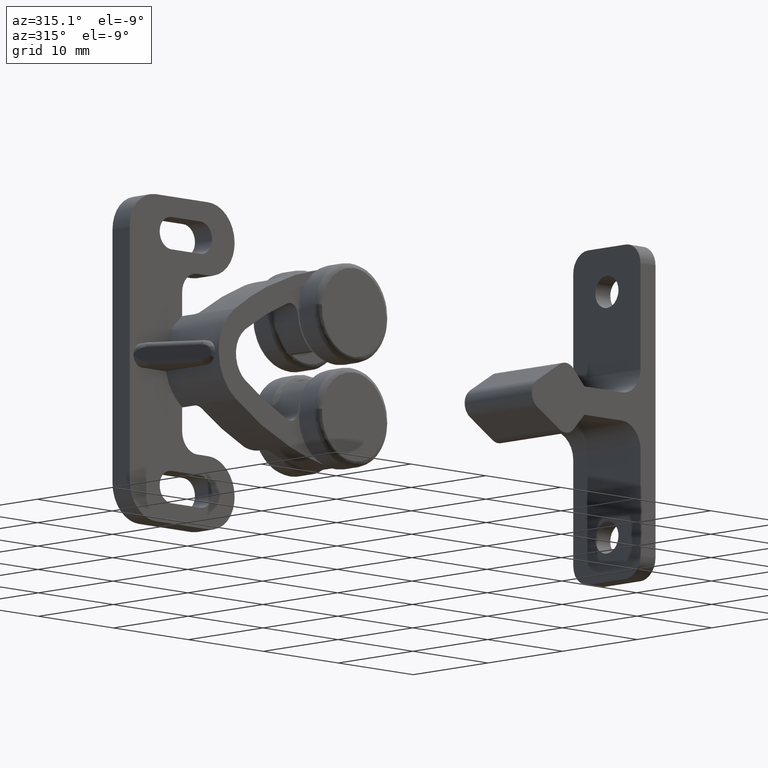
[diagram: clean part render]
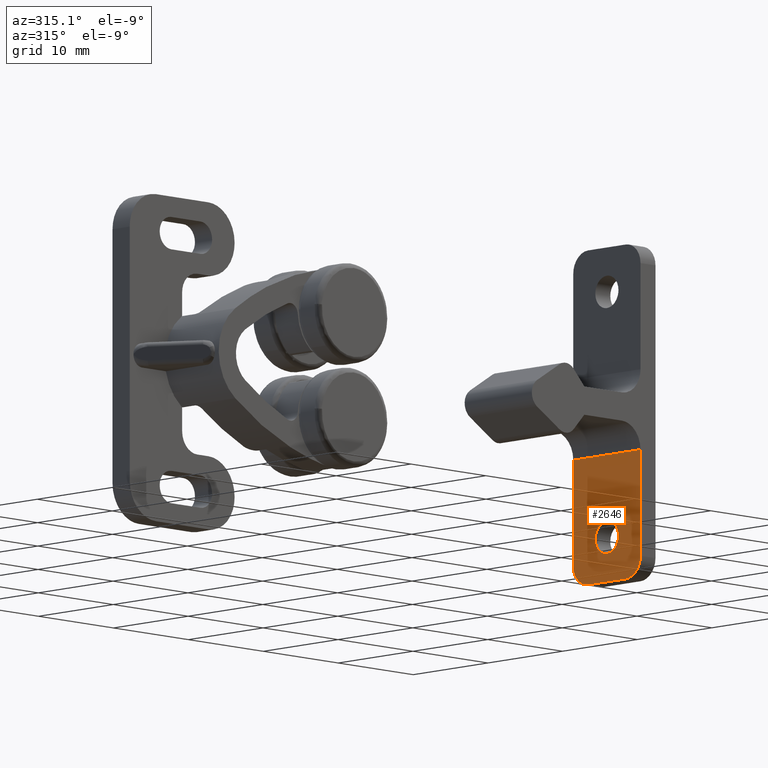
[diagram: same view with one face highlighted and labeled with its STEP entity id]
A machine part, auxiliary view. The second image highlights one B-rep face of the part: STEP entity #2646.
In plain terms, the highlighted face is a freeform B-spline surface patch.
Its self-contained STEP definition (entity closure, byte-faithful):
#1428=CARTESIAN_POINT('',(58.0,-8.0,-13.300000000000001));
#1429=VERTEX_POINT('',#1428);
#1430=CARTESIAN_POINT('',(58.000000000002252,-6.889191216720228,-12.831019449796329));
#1431=VERTEX_POINT('',#1430);
#1432=CARTESIAN_POINT('',(58.0,-8.0,-13.300000000000001));
#1433=CARTESIAN_POINT('',(58.000000000000377,-7.806461049804539,-13.300189715830760));
#1434=CARTESIAN_POINT('',(58.000000000001251,-7.509900996278197,-13.243679953734279));
#1435=CARTESIAN_POINT('',(58.000000000001343,-7.140853893384508,-13.054110386443121));
#1436=CARTESIAN_POINT('',(58.000000000002480,-6.970150419503607,-12.914241442479680));
#1437=CARTESIAN_POINT('',(58.000000000002252,-6.889191216720228,-12.831019449796329));
#1438=B_SPLINE_CURVE_WITH_KNOTS('',3,(#1432,#1433,#1434,#1435,#1436,#1437),.UNSPECIFIED.,.F.,.U.,(4,1,1,4),(0.000000010144279,0.580530282763065,0.890146057580822,1.238464103720375),.UNSPECIFIED.);
#1439=EDGE_CURVE('',#1429,#1431,#1438,.T.);
#1441=CARTESIAN_POINT('',(57.999999999999993,-9.549999999999658,-11.750001027670500));
#1442=VERTEX_POINT('',#1441);
#1443=CARTESIAN_POINT('',(57.999999999999993,-9.549999999999658,-11.750001027670500));
#1444=CARTESIAN_POINT('',(58.000000000000021,-9.550006136552460,-11.851442299291460));
#1445=CARTESIAN_POINT('',(58.000000000000007,-9.526296938404313,-12.092392794846541));
#1446=CARTESIAN_POINT('',(57.999999999999829,-9.413908398485395,-12.419104231002001));
#1447=CARTESIAN_POINT('',(58.000000000000327,-9.222997934115563,-12.720526984900379));
#1448=CARTESIAN_POINT('',(57.999999999999183,-9.000252241897492,-12.948820287772071));
#1449=CARTESIAN_POINT('',(58.000000000001037,-8.756562488844111,-13.111617904048581));
#1450=CARTESIAN_POINT('',(57.999999999998771,-8.431083294713936,-13.255943924579160));
#1451=CARTESIAN_POINT('',(58.000000000001030,-8.177551977475682,-13.300123002770770));
#1452=CARTESIAN_POINT('',(58.0,-8.0,-13.300000000000001));
#1453=B_SPLINE_CURVE_WITH_KNOTS('',3,(#1443,#1444,#1445,#1446,#1447,#1448,#1449,#1450,#1451,#1452),.UNSPECIFIED.,.F.,.U.,(4,1,1,1,1,1,1,4),(0.000000023607427,0.304338703580194,0.722833962117716,1.027182614872012,1.369567845664718,1.673915684543682,1.902186640051090,2.434794824492083),.UNSPECIFIED.);
#1454=EDGE_CURVE('',#1442,#1429,#1453,.T.);
#1456=CARTESIAN_POINT('',(58.0,-8.0,-10.199999999999999));
#1457=VERTEX_POINT('',#1456);
#1458=CARTESIAN_POINT('',(58.0,-8.0,-10.199999999999999));
#1459=CARTESIAN_POINT('',(58.000000000000057,-8.177542501841327,-10.199887133901001));
#1460=CARTESIAN_POINT('',(57.999999999999922,-8.494496765941882,-10.255065765207490));
#1461=CARTESIAN_POINT('',(58.000000000000149,-8.880685027267912,-10.455477519056361));
#1462=CARTESIAN_POINT('',(57.999999999999837,-9.167413585544464,-10.709032281322900));
#1463=CARTESIAN_POINT('',(58.000000000000028,-9.380788850837622,-11.011953983055109));
#1464=CARTESIAN_POINT('',(58.000000000000249,-9.518702192452611,-11.369588125276110));
#1465=CARTESIAN_POINT('',(57.999999999999737,-9.550035252723427,-11.623190343702500));
#1466=CARTESIAN_POINT('',(57.999999999999993,-9.549999999999658,-11.750001027670500));
#1467=B_SPLINE_CURVE_WITH_KNOTS('',3,(#1458,#1459,#1460,#1461,#1462,#1463,#1464,#1465,#1466),.UNSPECIFIED.,.F.,.U.,(4,1,1,1,1,1,4),(0.000000022198395,0.532608769132604,0.951097383422278,1.293483531110059,1.673916480986494,2.054366398546033,2.434795982945152),.UNSPECIFIED.);
#1468=EDGE_CURVE('',#1457,#1442,#1467,.T.);
#1470=CARTESIAN_POINT('',(57.999999999993953,-6.857219960032968,-10.702834982599800));
#1471=VERTEX_POINT('',#1470);
#1472=CARTESIAN_POINT('',(57.999999999993953,-6.857219960032968,-10.702834982599800));
#1473=CARTESIAN_POINT('',(57.999999999994607,-6.992730007489492,-10.554634530675520));
#1474=CARTESIAN_POINT('',(57.999999999996163,-7.267494932029772,-10.352751702144770));
#1475=CARTESIAN_POINT('',(57.999999999998337,-7.678747323332294,-10.220671286522199));
#1476=CARTESIAN_POINT('',(57.999999999999503,-7.906304081924841,-10.199996830272640));
#1477=CARTESIAN_POINT('',(58.0,-8.0,-10.199999999999999));
#1478=B_SPLINE_CURVE_WITH_KNOTS('',3,(#1472,#1473,#1474,#1475,#1476,#1477),.UNSPECIFIED.,.F.,.U.,(4,1,1,4),(0.000000012270657,0.602360280200667,1.003933357717502,1.285034663912594),.UNSPECIFIED.);
#1479=EDGE_CURVE('',#1471,#1457,#1478,.T.);
#1561=CARTESIAN_POINT('',(58.0,-6.450000000000341,-11.749998972329481));
#1562=VERTEX_POINT('',#1561);
#1563=CARTESIAN_POINT('',(58.000000000002252,-6.889191216720228,-12.831019449796329));
#1564=CARTESIAN_POINT('',(58.000000000001798,-6.776137975313354,-12.714973958050580));
#1565=CARTESIAN_POINT('',(58.000000000001890,-6.601559004085329,-12.467616485019130));
#1566=CARTESIAN_POINT('',(58.000000000000469,-6.472890286522800,-12.086462335944740));
#1567=CARTESIAN_POINT('',(58.000000000000242,-6.449992684286532,-11.849689564790021));
#1568=CARTESIAN_POINT('',(58.0,-6.450000000000341,-11.749998972329481));
#1569=B_SPLINE_CURVE_WITH_KNOTS('',3,(#1563,#1564,#1565,#1566,#1567,#1568),.UNSPECIFIED.,.F.,.U.,(4,1,1,4),(0.000000015533145,0.486014722055374,0.897249139092646,1.196332180304869),.UNSPECIFIED.);
#1570=EDGE_CURVE('',#1431,#1562,#1569,.T.);
#1594=CARTESIAN_POINT('',(58.0,-6.450000000000341,-11.749998972329481));
#1595=CARTESIAN_POINT('',(57.999999999999282,-6.449962967546178,-11.618254412305250));
#1596=CARTESIAN_POINT('',(57.999999999997861,-6.479194864922063,-11.390723506969371));
#1597=CARTESIAN_POINT('',(57.999999999995907,-6.610333732910131,-11.028851883489541));
#1598=CARTESIAN_POINT('',(57.999999999994451,-6.751974295092440,-10.817583200213200));
#1599=CARTESIAN_POINT('',(57.999999999993953,-6.857219960032968,-10.702834982599800));
#1600=B_SPLINE_CURVE_WITH_KNOTS('',3,(#1594,#1595,#1596,#1597,#1598,#1599),.UNSPECIFIED.,.F.,.U.,(4,1,1,4),(0.000000012774801,0.395233856483370,0.682666048572457,1.149760477906395),.UNSPECIFIED.);
#1601=EDGE_CURVE('',#1562,#1471,#1600,.T.);
#1945=CARTESIAN_POINT('',(58.0,-10.500000000000000,-15.999599999999999));
#1946=VERTEX_POINT('',#1945);
#1947=CARTESIAN_POINT('',(58.0,-12.500000000000000,-13.999599999999999));
#1948=VERTEX_POINT('',#1947);
#1949=CARTESIAN_POINT('',(58.0,-10.500000000000000,-15.999599999999999));
#1950=CARTESIAN_POINT('',(58.000000000000050,-10.655440631993180,-15.999626354269930));
#1951=CARTESIAN_POINT('',(57.999999999999872,-10.982690614339941,-15.961282680189930));
#1952=CARTESIAN_POINT('',(58.000000000000369,-11.391561672018790,-15.806445373553711));
#1953=CARTESIAN_POINT('',(57.999999999999389,-11.729976112783151,-15.589167065778289));
#1954=CARTESIAN_POINT('',(58.000000000000362,-12.032715409287469,-15.311478447038461));
#1955=CARTESIAN_POINT('',(57.999999999999829,-12.280236705884700,-14.950662901650880));
#1956=CARTESIAN_POINT('',(57.999999999999858,-12.457738095397699,-14.490445104681401));
#1957=CARTESIAN_POINT('',(58.000000000000469,-12.500057753288189,-14.179591783301600));
#1958=CARTESIAN_POINT('',(58.0,-12.500000000000000,-13.999599999999999));
#1959=B_SPLINE_CURVE_WITH_KNOTS('',3,(#1949,#1950,#1951,#1952,#1953,#1954,#1955,#1956,#1957,#1958),.UNSPECIFIED.,.F.,.U.,(4,1,1,1,1,1,1,4),(0.000000074899983,0.466324219752764,0.981758553004054,1.300831247058447,1.668966529508047,2.208942671693905,2.601650445291411,3.141612365757078),.UNSPECIFIED.);
#1960=EDGE_CURVE('',#1946,#1948,#1959,.T.);
#2006=CARTESIAN_POINT('',(58.0,-3.500000000000080,-13.999599999999999));
#2007=VERTEX_POINT('',#2006);
#2008=CARTESIAN_POINT('',(58.0,-5.500000000000000,-15.999599999999999));
#2009=VERTEX_POINT('',#2008);
#2010=CARTESIAN_POINT('',(58.0,-3.500000000000080,-13.999599999999999));
#2011=CARTESIAN_POINT('',(58.000000000000128,-3.499916597240170,-14.195961700041209));
#2012=CARTESIAN_POINT('',(57.999999999999808,-3.543735509340844,-14.490428188751601));
#2013=CARTESIAN_POINT('',(58.000000000000142,-3.700229338770349,-14.896084885967610));
#2014=CARTESIAN_POINT('',(58.000000000000043,-3.888194979324888,-15.205376174621430));
#2015=CARTESIAN_POINT('',(58.000000000000639,-4.165929479190860,-15.508063197522031));
#2016=CARTESIAN_POINT('',(57.999999999999083,-4.492806158757356,-15.744336106666500));
#2017=CARTESIAN_POINT('',(58.000000000001329,-4.943747135064148,-15.944228034391079));
#2018=CARTESIAN_POINT('',(57.999999999999112,-5.287269945726048,-15.999730714029450));
#2019=CARTESIAN_POINT('',(58.0,-5.500000000000000,-15.999599999999999));
#2020=B_SPLINE_CURVE_WITH_KNOTS('',3,(#2010,#2011,#2012,#2013,#2014,#2015,#2016,#2017,#2018,#2019),.UNSPECIFIED.,.F.,.U.,(4,1,1,1,1,1,1,4),(0.000000074890806,0.589050951663792,0.883581692739689,1.300831247053276,1.668966529504116,2.110768140202842,2.503475913801229,3.141612365757026),.UNSPECIFIED.);
#2021=EDGE_CURVE('',#2007,#2009,#2020,.T.);
#2058=CARTESIAN_POINT('',(58.0,-12.500000000000000,-3.850000000000000));
#2059=VERTEX_POINT('',#2058);
#2060=CARTESIAN_POINT('',(58.0,-12.500000000000000,-3.850000000000000));
#2061=CARTESIAN_POINT('',(58.0,-12.500000000000000,-13.999599999999999));
#2062=QUASI_UNIFORM_CURVE('',1,(#2060,#2061),.UNSPECIFIED.,.F.,.U.);
#2063=EDGE_CURVE('',#2059,#1948,#2062,.T.);
#2207=CARTESIAN_POINT('',(58.0,-3.500000000000060,-3.850000000000000));
#2208=VERTEX_POINT('',#2207);
#2209=CARTESIAN_POINT('',(58.0,-3.500000000000060,-3.850000000000000));
#2210=CARTESIAN_POINT('',(58.0,-3.500000000000080,-13.999599999999999));
#2211=QUASI_UNIFORM_CURVE('',1,(#2209,#2210),.UNSPECIFIED.,.F.,.U.);
#2212=EDGE_CURVE('',#2208,#2007,#2211,.T.);
#2392=CARTESIAN_POINT('',(58.0,-5.500000000000000,-15.999599999999999));
#2393=CARTESIAN_POINT('',(58.0,-10.500000000000000,-15.999599999999999));
#2394=QUASI_UNIFORM_CURVE('',1,(#2392,#2393),.UNSPECIFIED.,.F.,.U.);
#2395=EDGE_CURVE('',#2009,#1946,#2394,.T.);
#2428=CARTESIAN_POINT('',(58.0,-3.500000000000060,-3.850000000000000));
#2429=CARTESIAN_POINT('',(58.0,-12.500000000000000,-3.850000000000000));
#2430=QUASI_UNIFORM_CURVE('',1,(#2428,#2429),.UNSPECIFIED.,.F.,.U.);
#2431=EDGE_CURVE('',#2208,#2059,#2430,.T.);
#2625=CARTESIAN_POINT('',(58.0,-12.949549982556251,-16.606472952658720));
#2626=CARTESIAN_POINT('',(58.0,-12.949549982556251,-3.243127155967162));
#2627=CARTESIAN_POINT('',(58.0,-3.050449776044999,-16.606472952658720));
#2628=CARTESIAN_POINT('',(58.0,-3.050449776044999,-3.243127155967162));
#2629=B_SPLINE_SURFACE_WITH_KNOTS('',1,1,((#2625,#2627),(#2626,#2628)),.UNSPECIFIED.,.F.,.F.,.U.,(2,2),(2,2),(0.0,13.363345796691560),(0.0,9.899100206511253),.UNSPECIFIED.);
#2630=ORIENTED_EDGE('',*,*,#2212,.T.);
#2631=ORIENTED_EDGE('',*,*,#2021,.T.);
#2632=ORIENTED_EDGE('',*,*,#2395,.T.);
#2633=ORIENTED_EDGE('',*,*,#1960,.T.);
#2634=ORIENTED_EDGE('',*,*,#2063,.F.);
#2635=ORIENTED_EDGE('',*,*,#2431,.F.);
#2636=EDGE_LOOP('',(#2630,#2631,#2632,#2633,#2634,#2635));
#2637=FACE_OUTER_BOUND('',#2636,.T.);
#2638=ORIENTED_EDGE('',*,*,#1468,.T.);
#2639=ORIENTED_EDGE('',*,*,#1454,.T.);
#2640=ORIENTED_EDGE('',*,*,#1439,.T.);
#2641=ORIENTED_EDGE('',*,*,#1570,.T.);
#2642=ORIENTED_EDGE('',*,*,#1601,.T.);
#2643=ORIENTED_EDGE('',*,*,#1479,.T.);
#2644=EDGE_LOOP('',(#2638,#2639,#2640,#2641,#2642,#2643));
#2645=FACE_BOUND('',#2644,.T.);
#2646=ADVANCED_FACE('',(#2637,#2645),#2629,.T.);